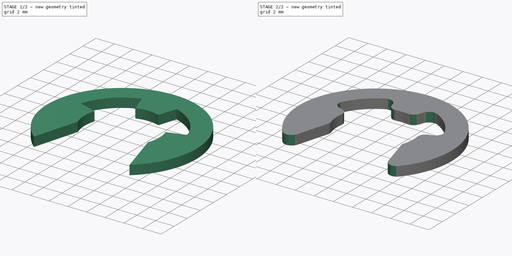
[diagram: build sequence overview — one tinted view per stage of 2, left to right]
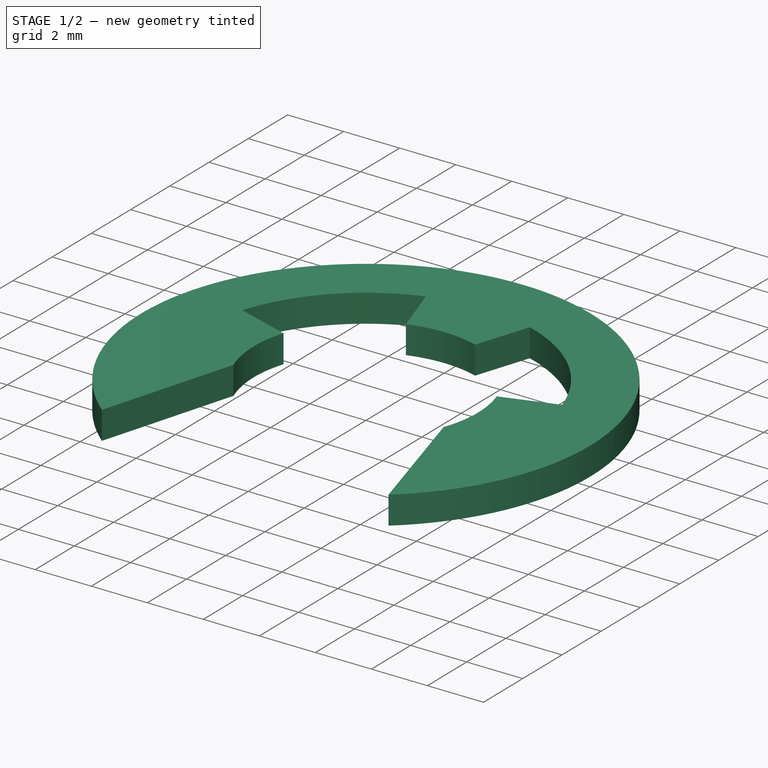
[diagram: stage 1 of 2 — iso view after this stage's code; geometry added in this stage tinted green]
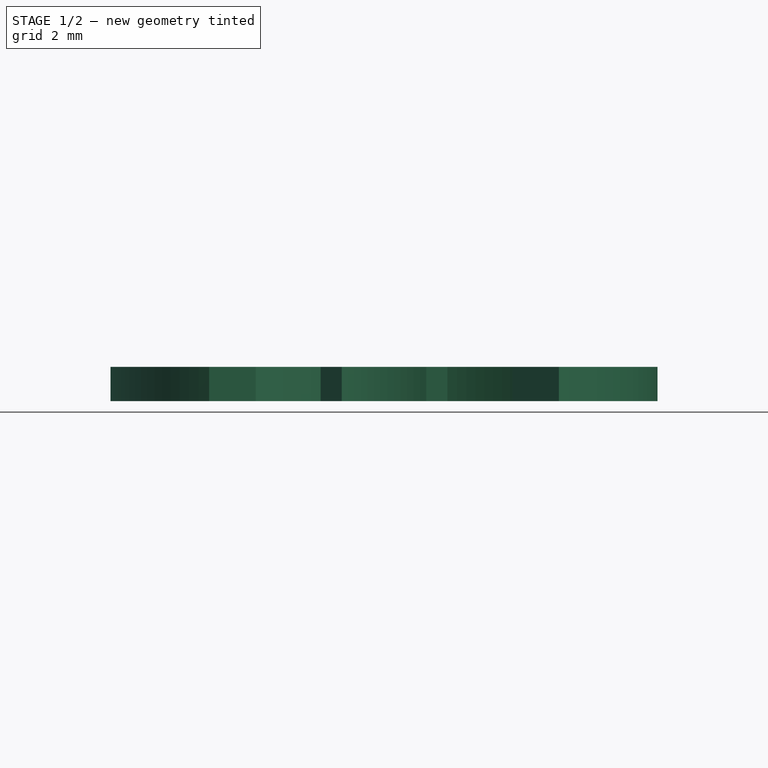
[diagram: stage 1 of 2 — front view after this stage's code; geometry added in this stage tinted green]
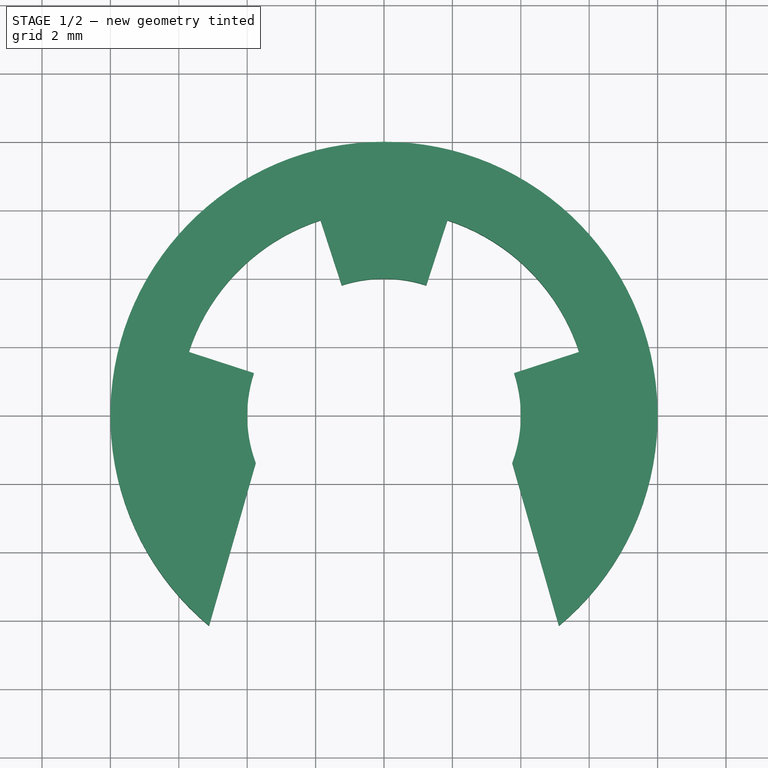
[diagram: stage 1 of 2 — top view after this stage's code; geometry added in this stage tinted green]
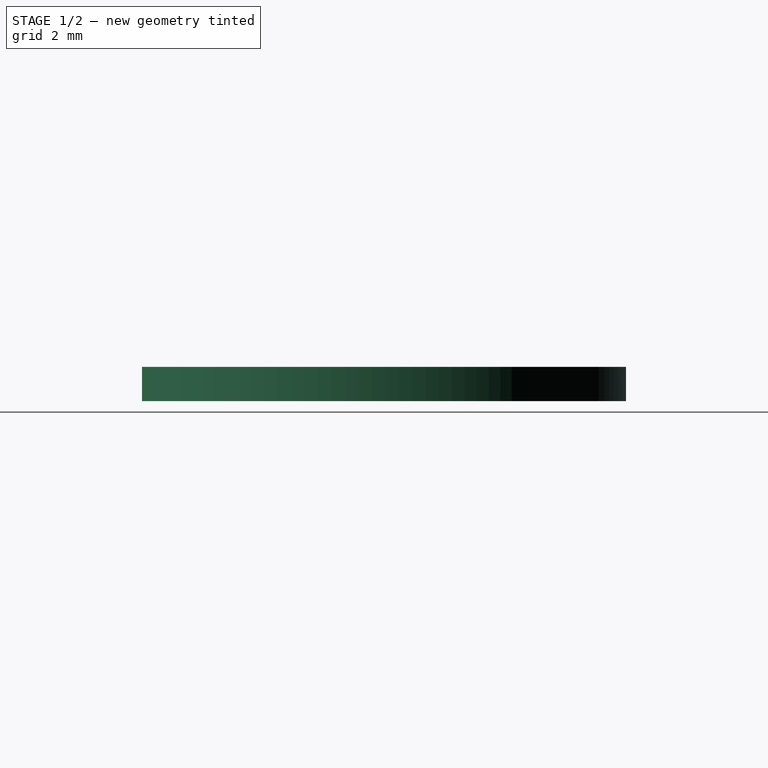
[diagram: stage 1 of 2 — right view after this stage's code; geometry added in this stage tinted green]
FCSTD DOCUMENT  (FreeCAD 0.16R6703 (Git))
Label: E_clip_8mm
License: CreativeCommons Attribution-ShareAlike
LicenseURL: http://creativecommons.org/licenses/by-sa/4.0/
objects: Sketcher::SketchObject×1, PartDesign::Pad×1, PartDesign::Fillet×1
note: 4 computed .brp shape members not serialized (recipe doc carries the construction recipe); baked Part::Feature solids carry a one-line shape summary decoded from their .brp

FEATURE [Sketcher::SketchObject] Sketch
  sketch-geometry (16):
    g0: ArcOfCircle CenterX=0 CenterY=0 CenterZ=0 NormalX=0 NormalY=0 NormalZ=1 Radius=8 StartAngle=5.40603 EndAngle=10.3019
    g1: LineSegment StartX=-5.11474 StartY=-6.15137 StartZ=0 EndX=-3.75 EndY=-1.39194 EndZ=0
    g2: ArcOfCircle CenterX=0 CenterY=0 CenterZ=0 NormalX=0 NormalY=0 NormalZ=1 Radius=6 StartAngle=1.88498 EndAngle=2.82743
    g3: LineSegment StartX=5.11474 StartY=-6.15137 StartZ=0 EndX=3.75 EndY=-1.39194 EndZ=0
    g4: ArcOfCircle CenterX=0 CenterY=0 CenterZ=0 NormalX=0 NormalY=0 NormalZ=1 Radius=6 StartAngle=0.314159 EndAngle=1.25666
    g5: ArcOfCircle CenterX=0 CenterY=0 CenterZ=0 NormalX=0 NormalY=0 NormalZ=1 Radius=4 StartAngle=2.82743 EndAngle=3.49701
    g6: LineSegment StartX=-5.70634 StartY=1.8541 StartZ=0 EndX=-3.80423 EndY=1.23607 EndZ=0
    g7: ArcOfCircle CenterX=0 CenterY=0 CenterZ=0 NormalX=0 NormalY=0 NormalZ=1 Radius=4 StartAngle=5.92776 EndAngle=6.59734
    g8: LineSegment StartX=3.80423 StartY=1.23607 StartZ=0 EndX=5.70634 EndY=1.8541 EndZ=0
    g9: ArcOfCircle CenterX=0 CenterY=0 CenterZ=0 NormalX=0 NormalY=0 NormalZ=1 Radius=4 StartAngle=1.25664 EndAngle=1.88496
    g10: LineSegment StartX=-1.85425 StartY=5.70629 StartZ=0 EndX=-1.23607 EndY=3.80423 EndZ=0
    g11: LineSegment StartX=1.85395 StartY=5.70639 StartZ=0 EndX=1.23607 EndY=3.80423 EndZ=0
    g12: LineSegment [constr] StartX=0 StartY=0 StartZ=0 EndX=5.70634 EndY=1.8541 EndZ=0
    g13: LineSegment [constr] StartX=0 StartY=0 StartZ=0 EndX=1.85395 EndY=5.70639 EndZ=0
    g14: LineSegment [constr] StartX=0 StartY=0 StartZ=0 EndX=-1.85425 EndY=5.70629 EndZ=0
    g15: LineSegment [constr] StartX=0 StartY=0 StartZ=0 EndX=-5.70634 EndY=1.8541 EndZ=0
  constraints (44):
    c: Coincident(g0,g-1)
    c: Radius(g0) = 8
    c: Coincident(g0,g1)
    c: Coincident(g0,g3)
    c: Coincident(g4,g-1)
    c: DistanceX(g1,g3) = 7.5
    c: Coincident(g2,g-1)
    c: Coincident(g5,g-1)
    c: Coincident(g5,g1)
    c: Coincident(g6,g2)
    c: Coincident(g6,g5)
    c: Coincident(g7,g-1)
    c: Coincident(g7,g3)
    c: Coincident(g8,g7)
    c: Coincident(g8,g4)
    c: Radius(g5) = 4
    c: Angle(g1,g3) = 0.558505
    c: Equal(g2,g4)
    c: Radius(g4) = 6
    c: Equal(g6,g8)
    c: Coincident(g9,g-1)
    c: Coincident(g10,g2)
    c: Coincident(g10,g9)
    c: Coincident(g11,g4)
    c: Coincident(g11,g9)
    c: Equal(g10,g11)
    c: Angle(g11,g10) = 0.628319
    c: Equal(g5,g9)
    c: Symmetric(g0,g0,g-2)
    c: Equal(g1,g3)
    c: Symmetric(g9,g9,g-2)
    c: Coincident(g12,g-1)
    c: Coincident(g12,g4)
    c: Coincident(g13,g-1)
    c: Coincident(g13,g4)
    c: Coincident(g14,g-1)
    c: Coincident(g14,g2)
    c: Coincident(g15,g-1)
    c: Coincident(g15,g2)
    c: Angle(g-1,g12) = 0.314159
    c: Angle(g-1,g15) = 2.82743
    c: Angle(g13,g14) = 0.628319
    c: PointOnObject(g5,g15)
    c: PointOnObject(g7,g12)
FEATURE [PartDesign::Pad] Pad
  Length = 1
  Length2 = 100
  Sketch = -> Sketch
  Type = 0
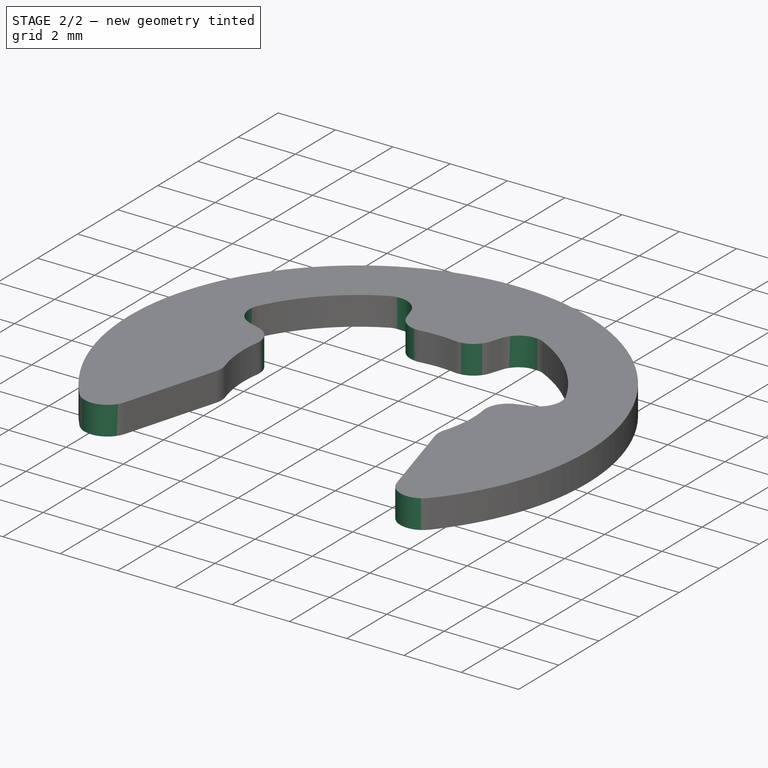
[diagram: stage 2 of 2 — iso view after this stage's code; geometry added in this stage tinted green]
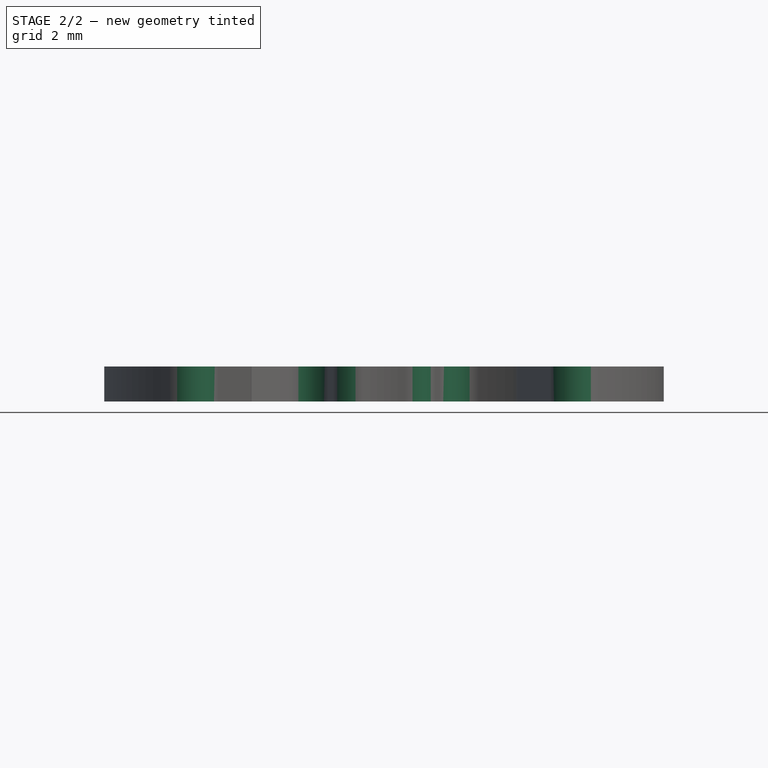
[diagram: stage 2 of 2 — front view after this stage's code; geometry added in this stage tinted green]
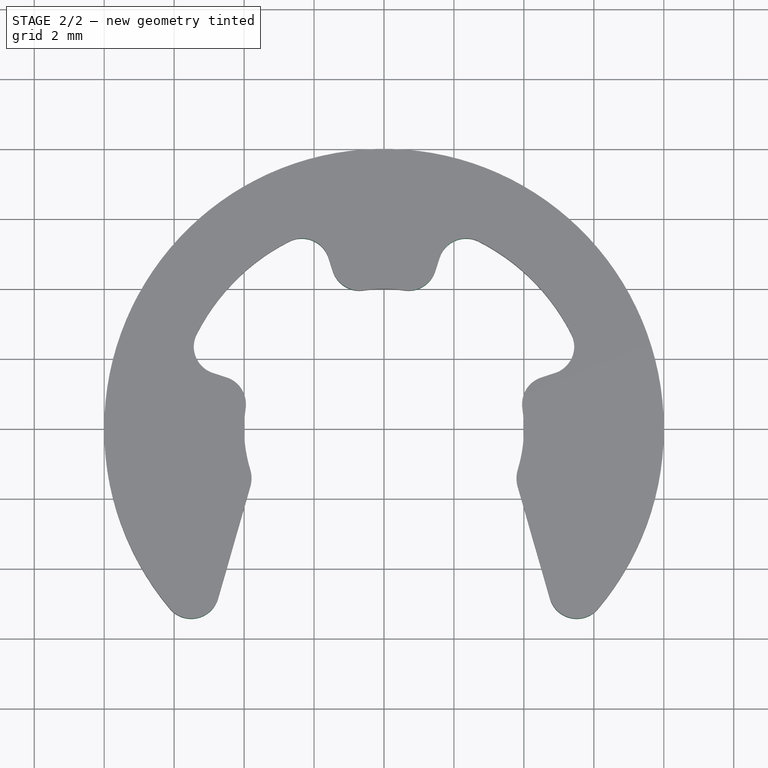
[diagram: stage 2 of 2 — top view after this stage's code; geometry added in this stage tinted green]
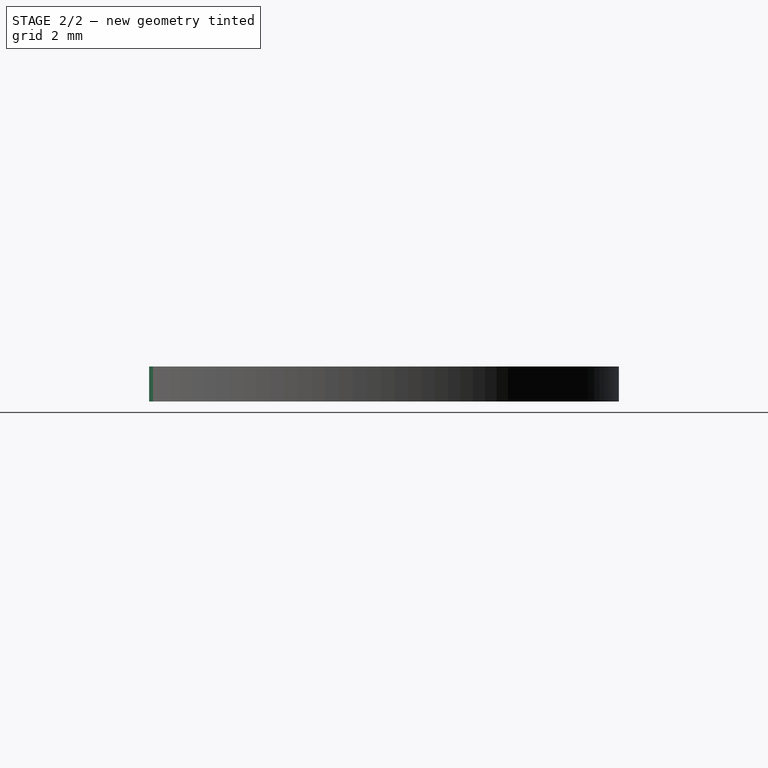
[diagram: stage 2 of 2 — right view after this stage's code; geometry added in this stage tinted green]
FEATURE [PartDesign::Fillet] Fillet
  Base = -> Pad [Edge5,Edge8,Edge11,Edge14,Edge17,Edge20,Edge23,Edge26,Edge29,Edge32,Edge2,Edge1]
  Radius = 0.8
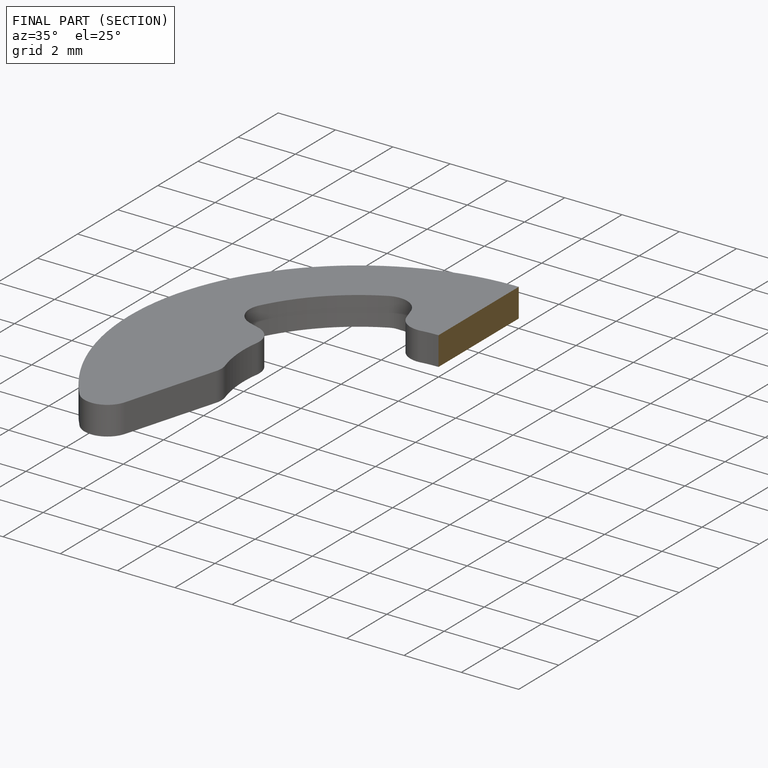
[diagram: finished part — half-section view (interior)]
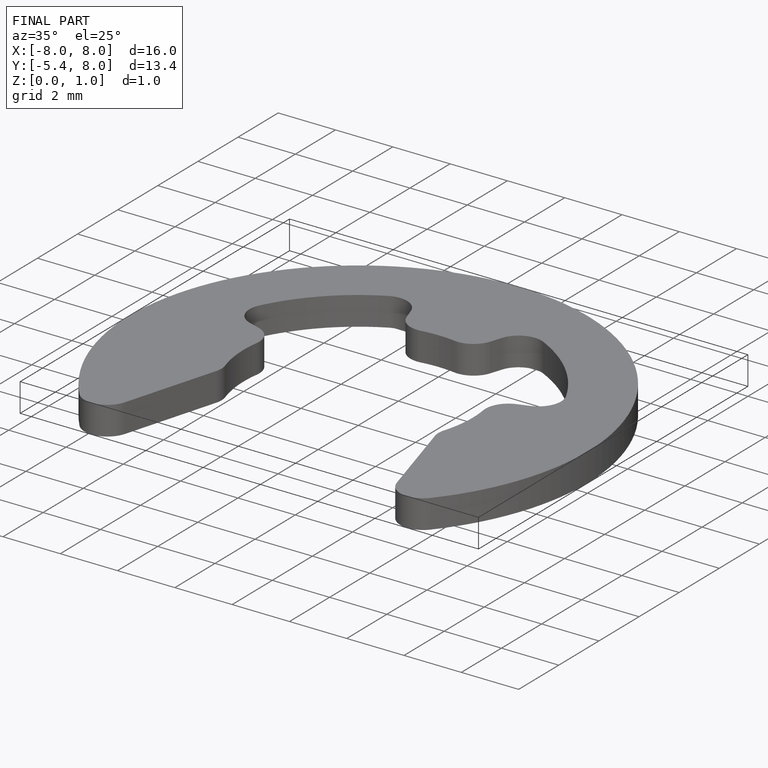
[diagram: finished part — iso view with bounding-box wireframe]
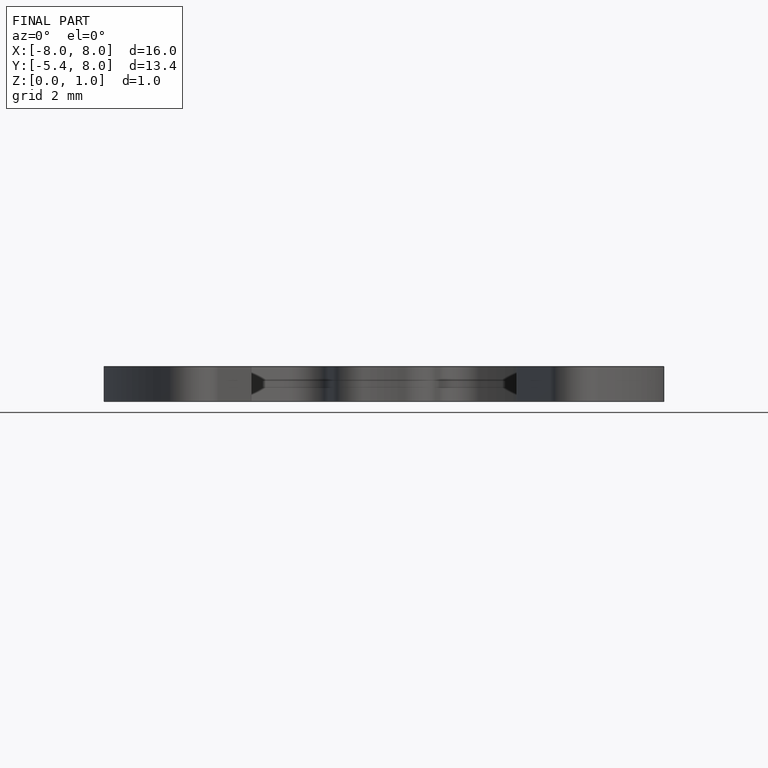
[diagram: finished part — front view with bounding-box wireframe]
